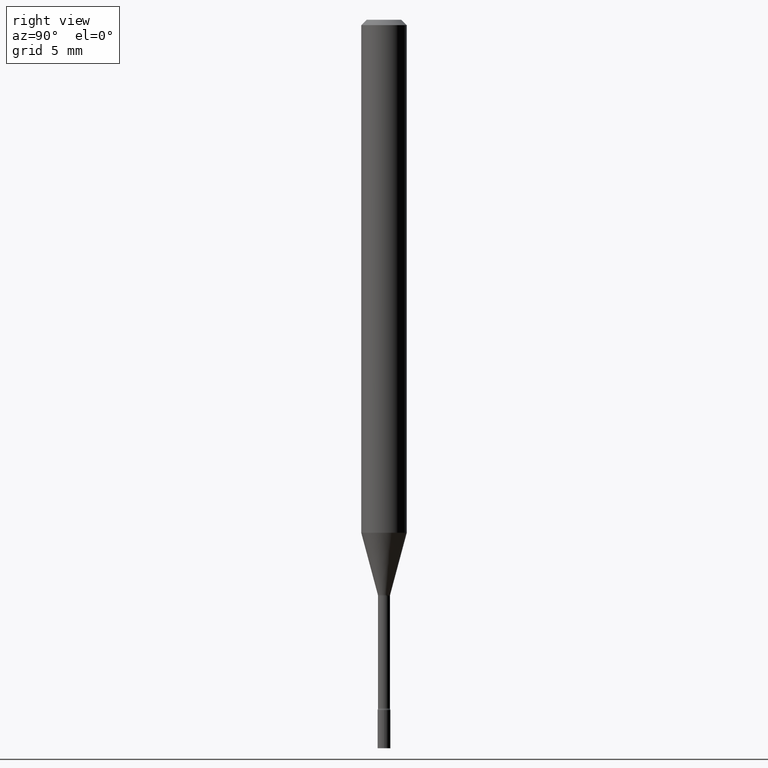
[diagram: clean part render]
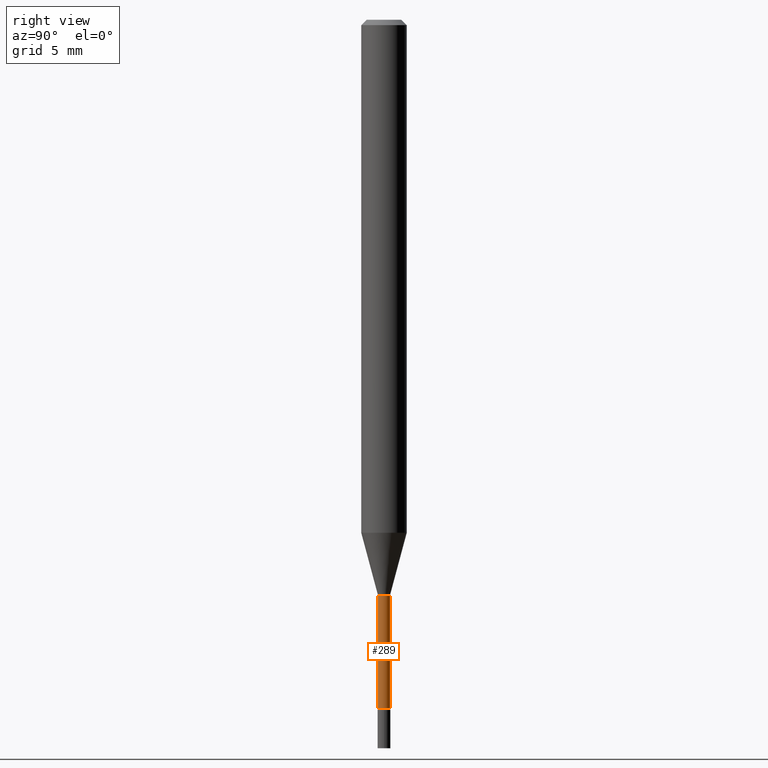
[diagram: same view with one face highlighted and labeled with its STEP entity id]
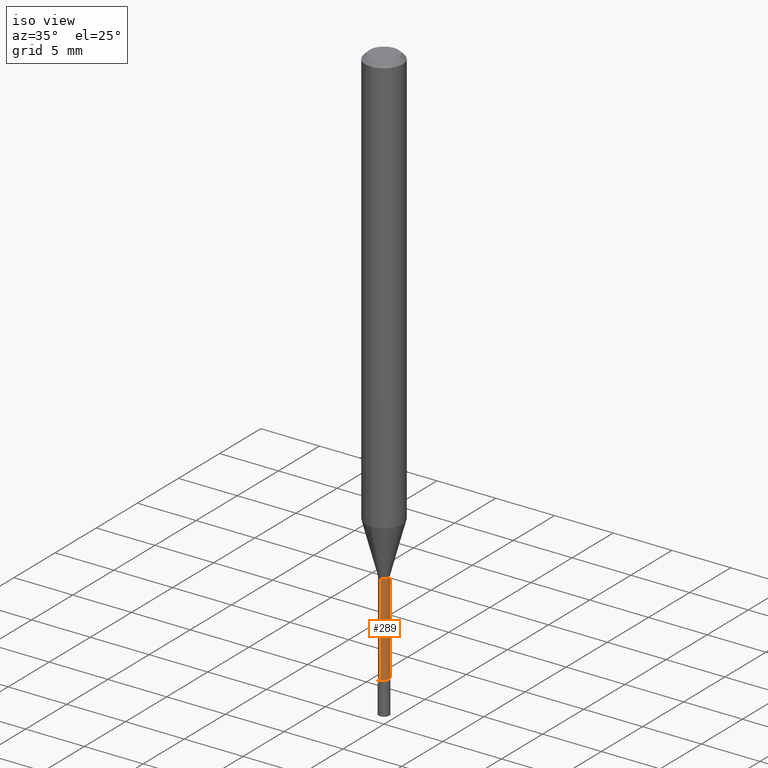
[diagram: same view with one face highlighted and labeled with its STEP entity id]
A machine part, right view. The second image highlights one B-rep face of the part: STEP entity #289.
A second angle (iso view) of the same face is appended — the face is thin or edge-on in the first view.
In plain terms, the highlighted cylindrical surface (edge-blend (fillet) strip) has radius 0.4178 mm, axis along (-0, 0, 1).
Its self-contained STEP definition (entity closure, byte-faithful):
#2 = DIRECTION ( 'NONE',  ( -6.982962677686265133E-15, -1.000000000000000000, 3.491430358074373521E-15 ) ) ;
#14 = DIRECTION ( 'NONE',  ( -6.982962677686265133E-15, -1.000000000000000000, 0.000000000000000000 ) ) ;
#15 = DIRECTION ( 'NONE',  ( -2.445504405865697767E-29, 3.491430358074373916E-15, 1.000000000000000000 ) ) ;
#21 = DIRECTION ( 'NONE',  ( -2.445504405865697767E-29, 3.491430358074373916E-15, 1.000000000000000000 ) ) ;
#43 = VECTOR ( 'NONE', #15, 39.37007874015748143 ) ;
#77 = FACE_OUTER_BOUND ( 'NONE', #194, .T. ) ;
#86 = VERTEX_POINT ( 'NONE', #351 ) ;
#88 = CYLINDRICAL_SURFACE ( 'NONE', #92, 0.01645000000000000975 ) ;
#92 = AXIS2_PLACEMENT_3D ( 'NONE', #161, #278, #2 ) ;
#121 = EDGE_CURVE ( 'NONE', #484, #242, #295, .T. ) ;
#123 = VECTOR ( 'NONE', #21, 39.37007874015748143 ) ;
#155 = ORIENTED_EDGE ( 'NONE', *, *, #121, .T. ) ;
#161 = CARTESIAN_POINT ( 'NONE',  ( 0.000000000000000000, 0.000000000000000000, 0.000000000000000000 ) ) ;
#173 = CARTESIAN_POINT ( 'NONE',  ( 1.206146293953234297E-16, 0.01644999999999342821, -1.889486607215153047 ) ) ;
#194 = EDGE_LOOP ( 'NONE', ( #326, #155, #265, #363 ) ) ;
#204 = CARTESIAN_POINT ( 'NONE',  ( 4.620747822768886437E-29, -6.597010901605935540E-15, -1.889486607215153047 ) ) ;
#222 = CIRCLE ( 'NONE', #470, 0.01644999999999999934 ) ;
#242 = VERTEX_POINT ( 'NONE', #277 ) ;
#245 = CARTESIAN_POINT ( 'NONE',  ( -1.148697360479003729E-16, -0.01645000000000552270, -1.581974787463811039 ) ) ;
#265 = ORIENTED_EDGE ( 'NONE', *, *, #431, .F. ) ;
#274 = EDGE_CURVE ( 'NONE', #86, #484, #341, .T. ) ;
#277 = CARTESIAN_POINT ( 'NONE',  ( 1.168842800325827475E-16, 0.01644999999999447252, -1.581974787463811039 ) ) ;
#278 = DIRECTION ( 'NONE',  ( -2.445504405865697767E-29, 3.491430358074373916E-15, 1.000000000000000000 ) ) ;
#289 = ADVANCED_FACE ( 'NONE', ( #77 ), #88, .T. ) ;
#290 = VERTEX_POINT ( 'NONE', #245 ) ;
#293 = LINE ( 'NONE', #501, #43 ) ;
#295 = LINE ( 'NONE', #307, #123 ) ;
#307 = CARTESIAN_POINT ( 'NONE',  ( 1.168842800325365252E-16, 0.01645000000000000975, -5.743402939032348028E-17 ) ) ;
#326 = ORIENTED_EDGE ( 'NONE', *, *, #274, .T. ) ;
#341 = CIRCLE ( 'NONE', #393, 0.01645000000000002363 ) ;
#351 = CARTESIAN_POINT ( 'NONE',  ( -1.148697360478930266E-16, -0.01645000000000661905, -1.889486607215153047 ) ) ;
#363 = ORIENTED_EDGE ( 'NONE', *, *, #481, .F. ) ;
#372 = DIRECTION ( 'NONE',  ( -2.445504405865697767E-29, 3.491430358074373916E-15, 1.000000000000000000 ) ) ;
#380 = CARTESIAN_POINT ( 'NONE',  ( 3.868726312711200539E-29, -5.523354798659406654E-15, -1.581974787463811039 ) ) ;
#393 = AXIS2_PLACEMENT_3D ( 'NONE', #204, #488, #451 ) ;
#431 = EDGE_CURVE ( 'NONE', #290, #242, #222, .T. ) ;
#451 = DIRECTION ( 'NONE',  ( -6.982962677686265133E-15, -1.000000000000000000, 0.000000000000000000 ) ) ;
#470 = AXIS2_PLACEMENT_3D ( 'NONE', #380, #372, #14 ) ;
#481 = EDGE_CURVE ( 'NONE', #86, #290, #293, .T. ) ;
#484 = VERTEX_POINT ( 'NONE', #173 ) ;
#488 = DIRECTION ( 'NONE',  ( -2.445504405865697767E-29, 3.491430358074373916E-15, 1.000000000000000000 ) ) ;
#501 = CARTESIAN_POINT ( 'NONE',  ( -1.148697360479391256E-16, -0.01645000000000000975, 5.743402939032348028E-17 ) ) ;